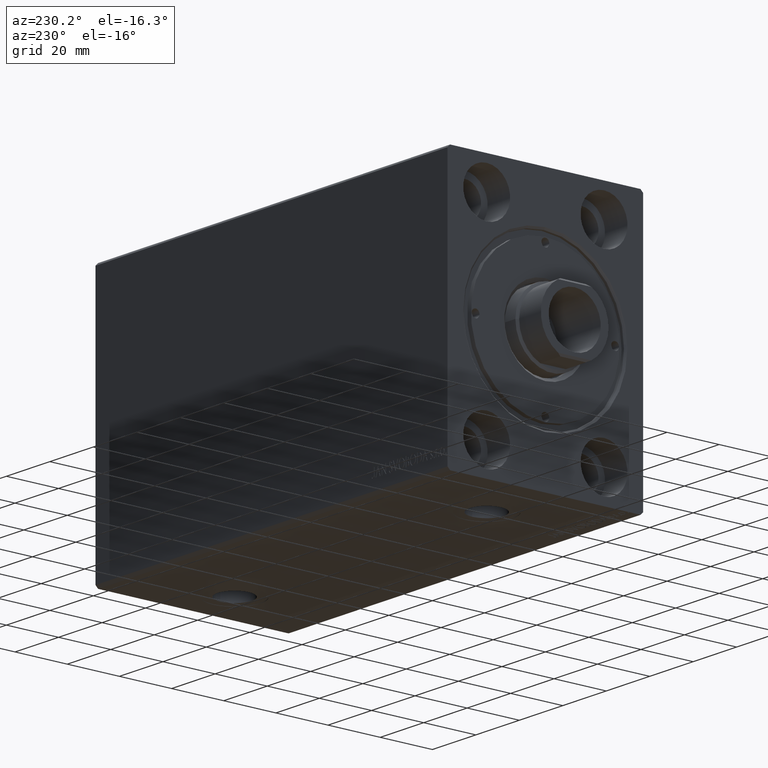
[diagram: clean part render]
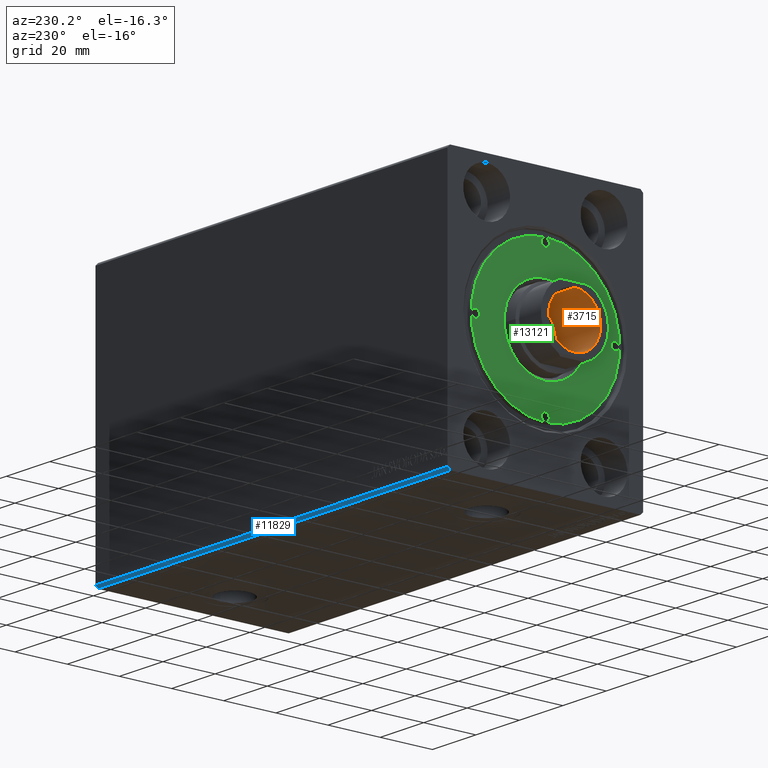
[diagram: same view with three faces highlighted in distinct colors, each labeled with its STEP entity id]
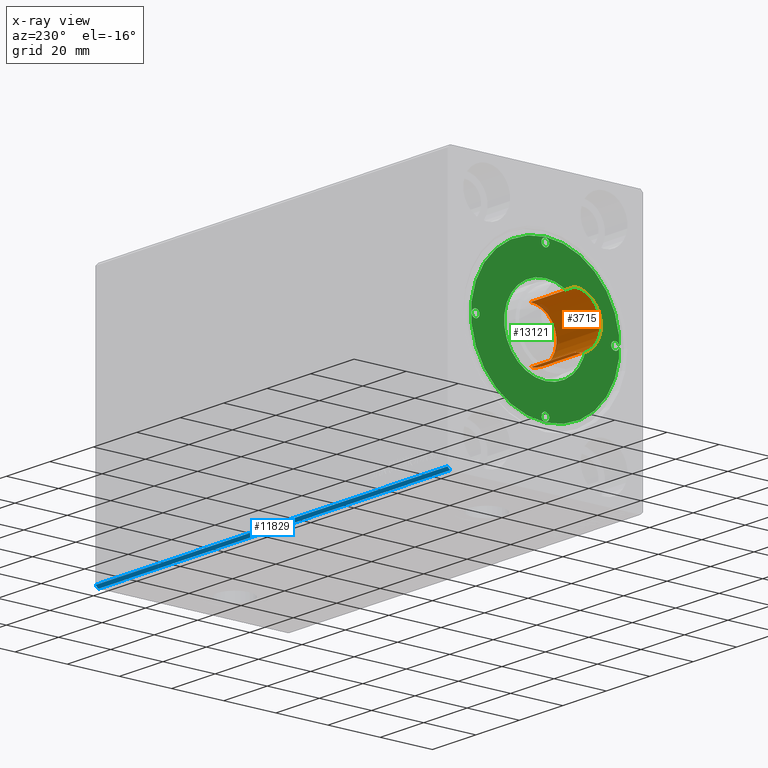
[diagram: x-ray of the same camera — body ghosted, the three highlighted faces saturated]
A machine part, auxiliary view with three faces highlighted in distinct colors.
The next image is the same camera in x-ray (body ghosted, the three faces saturated) — at least one of them is partly hidden behind the body in this view.
Their STEP definitions:

[orange] entity #3715 — the highlighted cylindrical surface (edge-blend (fillet) strip) has radius 10 mm, axis along (-1, 0, 0).
#479 = CARTESIAN_POINT ( 'NONE',  ( 0.000000000000000000, -2.189748893689212880E-14, 108.1000000000000085 ) ) ;
#993 = VECTOR ( 'NONE', #28057, 1000.000000000000000 ) ;
#1708 = DIRECTION ( 'NONE',  ( 1.000000000000000000, 0.000000000000000000, 0.000000000000000000 ) ) ;
#1867 = EDGE_CURVE ( 'NONE', #32778, #42388, #30099, .T. ) ;
#2448 = CARTESIAN_POINT ( 'NONE',  ( -10.00000000000000000, -2.067284213774477416E-14, 108.1000000000000085 ) ) ;
#3715 = ADVANCED_FACE ( 'NONE', ( #8234 ), #21940, .F. ) ;
#5112 = ORIENTED_EDGE ( 'NONE', *, *, #1867, .T. ) ;
#5269 = CARTESIAN_POINT ( 'NONE',  ( 10.00000000000000000, -2.189748893689212880E-14, 128.5000000000000000 ) ) ;
#6124 = DIRECTION ( 'NONE',  ( 1.000000000000000000, 0.000000000000000000, 0.000000000000000000 ) ) ;
#8234 = FACE_OUTER_BOUND ( 'NONE', #12798, .T. ) ;
#8975 = VECTOR ( 'NONE', #27157, 1000.000000000000000 ) ;
#11104 = AXIS2_PLACEMENT_3D ( 'NONE', #479, #14421, #31293 ) ;
#12511 = VERTEX_POINT ( 'NONE', #29100 ) ;
#12798 = EDGE_LOOP ( 'NONE', ( #18427, #5112, #31259, #13390 ) ) ;
#13390 = ORIENTED_EDGE ( 'NONE', *, *, #34116, .F. ) ;
#14337 = CARTESIAN_POINT ( 'NONE',  ( 10.00000000000000000, -2.189748893689212880E-14, 108.1000000000000085 ) ) ;
#14421 = DIRECTION ( 'NONE',  ( 0.000000000000000000, 0.000000000000000000, 1.000000000000000000 ) ) ;
#17850 = AXIS2_PLACEMENT_3D ( 'NONE', #44130, #40519, #6124 ) ;
#18427 = ORIENTED_EDGE ( 'NONE', *, *, #23572, .F. ) ;
#18558 = CARTESIAN_POINT ( 'NONE',  ( 0.000000000000000000, -2.189748893689212880E-14, 108.1000000000000085 ) ) ;
#21940 = CYLINDRICAL_SURFACE ( 'NONE', #25024, 10.00000000000000000 ) ;
#23572 = EDGE_CURVE ( 'NONE', #32778, #12511, #43409, .T. ) ;
#25024 = AXIS2_PLACEMENT_3D ( 'NONE', #18558, #32299, #1708 ) ;
#25871 = CARTESIAN_POINT ( 'NONE',  ( -10.00000000000000000, -2.067284213774477416E-14, 128.5000000000000000 ) ) ;
#27157 = DIRECTION ( 'NONE',  ( -0.000000000000000000, -0.000000000000000000, 1.000000000000000000 ) ) ;
#28057 = DIRECTION ( 'NONE',  ( -0.000000000000000000, -0.000000000000000000, 1.000000000000000000 ) ) ;
#29100 = CARTESIAN_POINT ( 'NONE',  ( 10.00000000000000000, -2.189748893689212880E-14, 108.1000000000000085 ) ) ;
#30099 = LINE ( 'NONE', #2448, #8975 ) ;
#31259 = ORIENTED_EDGE ( 'NONE', *, *, #37421, .T. ) ;
#31293 = DIRECTION ( 'NONE',  ( 1.000000000000000000, 0.000000000000000000, 0.000000000000000000 ) ) ;
#32299 = DIRECTION ( 'NONE',  ( -0.000000000000000000, -0.000000000000000000, 1.000000000000000000 ) ) ;
#32778 = VERTEX_POINT ( 'NONE', #37523 ) ;
#34116 = EDGE_CURVE ( 'NONE', #12511, #44042, #35256, .T. ) ;
#35256 = LINE ( 'NONE', #14337, #993 ) ;
#37421 = EDGE_CURVE ( 'NONE', #42388, #44042, #38663, .T. ) ;
#37523 = CARTESIAN_POINT ( 'NONE',  ( -10.00000000000000000, -2.067284213774477416E-14, 108.1000000000000085 ) ) ;
#38663 = CIRCLE ( 'NONE', #17850, 10.00000000000000000 ) ;
#40519 = DIRECTION ( 'NONE',  ( 0.000000000000000000, 0.000000000000000000, 1.000000000000000000 ) ) ;
#42388 = VERTEX_POINT ( 'NONE', #25871 ) ;
#43409 = CIRCLE ( 'NONE', #11104, 10.00000000000000000 ) ;
#44042 = VERTEX_POINT ( 'NONE', #5269 ) ;
#44130 = CARTESIAN_POINT ( 'NONE',  ( 0.000000000000000000, -2.189748893689212880E-14, 128.5000000000000000 ) ) ;

[blue] entity #11829 — the highlighted planar face has unit normal (0, -0.7071, 0.7071).
#1801 = CARTESIAN_POINT ( 'NONE',  ( 162.0000000000000000, 36.50000000000000711, -50.00000000000000000 ) ) ;
#2180 = VERTEX_POINT ( 'NONE', #7006 ) ;
#2192 = CARTESIAN_POINT ( 'NONE',  ( 162.0000000000000000, 36.50000000000000711, -50.00000000000000000 ) ) ;
#2501 = VERTEX_POINT ( 'NONE', #30129 ) ;
#5129 = VERTEX_POINT ( 'NONE', #6091 ) ;
#5370 = CARTESIAN_POINT ( 'NONE',  ( 162.0000000000000000, 37.50000000000000711, -49.00000000000000000 ) ) ;
#6091 = CARTESIAN_POINT ( 'NONE',  ( 162.0000000000000000, 37.50000000000000711, -49.00000000000000000 ) ) ;
#6938 = LINE ( 'NONE', #40893, #37955 ) ;
#7006 = CARTESIAN_POINT ( 'NONE',  ( 0.000000000000000000, 36.50000000000000711, -50.00000000000000000 ) ) ;
#8554 = PLANE ( 'NONE',  #15861 ) ;
#9770 = CARTESIAN_POINT ( 'NONE',  ( 162.0000000000000000, 36.50000000000000711, -50.00000000000000000 ) ) ;
#9870 = VECTOR ( 'NONE', #15233, 1000.000000000000114 ) ;
#11476 = EDGE_LOOP ( 'NONE', ( #37677, #13163, #38840, #14166 ) ) ;
#11829 = ADVANCED_FACE ( 'NONE', ( #39347 ), #8554, .F. ) ;
#13163 = ORIENTED_EDGE ( 'NONE', *, *, #24805, .F. ) ;
#14166 = ORIENTED_EDGE ( 'NONE', *, *, #24523, .T. ) ;
#14773 = VERTEX_POINT ( 'NONE', #9770 ) ;
#15233 = DIRECTION ( 'NONE',  ( 0.000000000000000000, 0.7071067811865474617, 0.7071067811865474617 ) ) ;
#15861 = AXIS2_PLACEMENT_3D ( 'NONE', #1801, #35758, #18875 ) ;
#18875 = DIRECTION ( 'NONE',  ( 0.000000000000000000, -0.7071067811865474617, -0.7071067811865474617 ) ) ;
#22197 = LINE ( 'NONE', #2192, #9870 ) ;
#22223 = LINE ( 'NONE', #5370, #34118 ) ;
#24523 = EDGE_CURVE ( 'NONE', #14773, #2180, #33506, .T. ) ;
#24805 = EDGE_CURVE ( 'NONE', #5129, #2501, #22223, .T. ) ;
#25461 = VECTOR ( 'NONE', #36669, 1000.000000000000000 ) ;
#29416 = DIRECTION ( 'NONE',  ( -1.000000000000000000, -0.000000000000000000, -0.000000000000000000 ) ) ;
#30129 = CARTESIAN_POINT ( 'NONE',  ( 0.000000000000000000, 37.50000000000000711, -49.00000000000000000 ) ) ;
#30554 = DIRECTION ( 'NONE',  ( 0.000000000000000000, 0.7071067811865474617, 0.7071067811865474617 ) ) ;
#33506 = LINE ( 'NONE', #37331, #25461 ) ;
#34118 = VECTOR ( 'NONE', #29416, 1000.000000000000000 ) ;
#34910 = EDGE_CURVE ( 'NONE', #14773, #5129, #22197, .T. ) ;
#35758 = DIRECTION ( 'NONE',  ( 0.000000000000000000, -0.7071067811865475727, 0.7071067811865475727 ) ) ;
#36669 = DIRECTION ( 'NONE',  ( -1.000000000000000000, -0.000000000000000000, -0.000000000000000000 ) ) ;
#37331 = CARTESIAN_POINT ( 'NONE',  ( 162.0000000000000000, 36.50000000000000711, -50.00000000000000000 ) ) ;
#37677 = ORIENTED_EDGE ( 'NONE', *, *, #40691, .T. ) ;
#37955 = VECTOR ( 'NONE', #30554, 1000.000000000000114 ) ;
#38840 = ORIENTED_EDGE ( 'NONE', *, *, #34910, .F. ) ;
#39347 = FACE_OUTER_BOUND ( 'NONE', #11476, .T. ) ;
#40691 = EDGE_CURVE ( 'NONE', #2180, #2501, #6938, .T. ) ;
#40893 = CARTESIAN_POINT ( 'NONE',  ( 0.000000000000000000, 36.50000000000000711, -50.00000000000000000 ) ) ;

[green] entity #13121 — the highlighted planar face has unit normal (-1, 0, 0).
#382 = AXIS2_PLACEMENT_3D ( 'NONE', #28810, #14864, #35787 ) ;
#1441 = CARTESIAN_POINT ( 'NONE',  ( 15.79999999999997407, 0.000000000000000000, 11.79999999999999893 ) ) ;
#1518 = DIRECTION ( 'NONE',  ( -0.000000000000000000, -0.000000000000000000, 1.000000000000000000 ) ) ;
#2059 = CARTESIAN_POINT ( 'NONE',  ( 28.50000000000000000, 3.490243377569956456E-15, 11.79999999999999893 ) ) ;
#2152 = AXIS2_PLACEMENT_3D ( 'NONE', #7824, #17047, #44512 ) ;
#2510 = AXIS2_PLACEMENT_3D ( 'NONE', #29355, #42188, #29129 ) ;
#3481 = EDGE_CURVE ( 'NONE', #25226, #17307, #10695, .T. ) ;
#4220 = AXIS2_PLACEMENT_3D ( 'NONE', #42187, #41746, #38151 ) ;
#4759 = CARTESIAN_POINT ( 'NONE',  ( 0.000000000000000000, -26.75000000000000000, 11.79999999999999893 ) ) ;
#5229 = VERTEX_POINT ( 'NONE', #10348 ) ;
#5682 = AXIS2_PLACEMENT_3D ( 'NONE', #24886, #1518, #31868 ) ;
#6002 = DIRECTION ( 'NONE',  ( 0.000000000000000000, 0.000000000000000000, 1.000000000000000000 ) ) ;
#6245 = CARTESIAN_POINT ( 'NONE',  ( 0.000000000000000000, 0.000000000000000000, 11.79999999999999893 ) ) ;
#7032 = AXIS2_PLACEMENT_3D ( 'NONE', #11699, #11923, #25385 ) ;
#7063 = EDGE_CURVE ( 'NONE', #36160, #5229, #25472, .T. ) ;
#7652 = FACE_BOUND ( 'NONE', #24799, .T. ) ;
#7696 = CARTESIAN_POINT ( 'NONE',  ( 0.000000000000000000, 26.75000000000000000, 11.79999999999999893 ) ) ;
#7824 = CARTESIAN_POINT ( 'NONE',  ( 0.000000000000000000, 0.000000000000000000, 11.79999999999999893 ) ) ;
#8339 = EDGE_LOOP ( 'NONE', ( #36701, #17964 ) ) ;
#8434 = EDGE_CURVE ( 'NONE', #26218, #43407, #11888, .T. ) ;
#8736 = ORIENTED_EDGE ( 'NONE', *, *, #8434, .F. ) ;
#8932 = DIRECTION ( 'NONE',  ( 1.000000000000000000, 0.000000000000000000, 0.000000000000000000 ) ) ;
#9644 = CARTESIAN_POINT ( 'NONE',  ( 0.000000000000000000, 0.000000000000000000, 11.79999999999999893 ) ) ;
#10150 = FACE_OUTER_BOUND ( 'NONE', #17496, .T. ) ;
#10348 = CARTESIAN_POINT ( 'NONE',  ( 25.25000000000000000, 1.836970198721027222E-16, 11.79999999999999893 ) ) ;
#10695 = CIRCLE ( 'NONE', #43026, 15.79999999999997762 ) ;
#10851 = DIRECTION ( 'NONE',  ( -0.000000000000000000, -0.000000000000000000, 1.000000000000000000 ) ) ;
#11035 = FACE_BOUND ( 'NONE', #8339, .T. ) ;
#11571 = DIRECTION ( 'NONE',  ( -0.000000000000000000, -0.000000000000000000, 1.000000000000000000 ) ) ;
#11699 = CARTESIAN_POINT ( 'NONE',  ( 0.000000000000000000, 0.000000000000000000, 11.79999999999999893 ) ) ;
#11888 = CIRCLE ( 'NONE', #382, 1.499999999999997780 ) ;
#11923 = DIRECTION ( 'NONE',  ( 0.000000000000000000, 0.000000000000000000, 1.000000000000000000 ) ) ;
#12574 = DIRECTION ( 'NONE',  ( 0.000000000000000000, 0.000000000000000000, 1.000000000000000000 ) ) ;
#12754 = ORIENTED_EDGE ( 'NONE', *, *, #25205, .F. ) ;
#12990 = DIRECTION ( 'NONE',  ( 1.000000000000000000, 0.000000000000000000, 0.000000000000000000 ) ) ;
#13112 = CARTESIAN_POINT ( 'NONE',  ( -15.79999999999997407, 1.934941942652814868E-15, 11.79999999999999893 ) ) ;
#13121 = ADVANCED_FACE ( 'NONE', ( #28114, #41836, #11035, #7652, #21345, #10150 ), #23840, .T. ) ;
#13201 = ORIENTED_EDGE ( 'NONE', *, *, #3481, .T. ) ;
#13279 = AXIS2_PLACEMENT_3D ( 'NONE', #30771, #34591, #20184 ) ;
#13891 = VERTEX_POINT ( 'NONE', #31500 ) ;
#13952 = AXIS2_PLACEMENT_3D ( 'NONE', #26683, #6002, #8932 ) ;
#14691 = AXIS2_PLACEMENT_3D ( 'NONE', #9644, #12574, #36192 ) ;
#14864 = DIRECTION ( 'NONE',  ( -0.000000000000000000, -0.000000000000000000, 1.000000000000000000 ) ) ;
#16707 = ORIENTED_EDGE ( 'NONE', *, *, #30549, .T. ) ;
#16856 = ORIENTED_EDGE ( 'NONE', *, *, #28884, .F. ) ;
#16920 = CARTESIAN_POINT ( 'NONE',  ( -1.499999999999996891, -26.75000000000000000, 11.79999999999999893 ) ) ;
#17047 = DIRECTION ( 'NONE',  ( -0.000000000000000000, -0.000000000000000000, -1.000000000000000000 ) ) ;
#17120 = CARTESIAN_POINT ( 'NONE',  ( -28.24999999999999645, 1.836970198721027222E-16, 11.79999999999999893 ) ) ;
#17271 = VERTEX_POINT ( 'NONE', #16920 ) ;
#17307 = VERTEX_POINT ( 'NONE', #13112 ) ;
#17496 = EDGE_LOOP ( 'NONE', ( #16707, #34546 ) ) ;
#17964 = ORIENTED_EDGE ( 'NONE', *, *, #42030, .F. ) ;
#18504 = DIRECTION ( 'NONE',  ( 1.000000000000000000, 0.000000000000000000, 0.000000000000000000 ) ) ;
#18668 = CIRCLE ( 'NONE', #40854, 1.499999999999996891 ) ;
#18825 = ORIENTED_EDGE ( 'NONE', *, *, #32803, .F. ) ;
#19717 = CIRCLE ( 'NONE', #14691, 28.50000000000000000 ) ;
#19793 = CARTESIAN_POINT ( 'NONE',  ( 1.499999999999996891, 26.75000000000000000, 11.79999999999999893 ) ) ;
#20099 = AXIS2_PLACEMENT_3D ( 'NONE', #4759, #10851, #21155 ) ;
#20184 = DIRECTION ( 'NONE',  ( 1.000000000000000000, 0.000000000000000000, 0.000000000000000000 ) ) ;
#21152 = AXIS2_PLACEMENT_3D ( 'NONE', #32021, #11571, #18504 ) ;
#21155 = DIRECTION ( 'NONE',  ( 1.000000000000000000, 0.000000000000000000, 0.000000000000000000 ) ) ;
#21345 = FACE_BOUND ( 'NONE', #37222, .T. ) ;
#21393 = DIRECTION ( 'NONE',  ( 1.000000000000000000, 0.000000000000000000, 0.000000000000000000 ) ) ;
#22574 = EDGE_CURVE ( 'NONE', #17307, #25226, #30142, .T. ) ;
#23312 = CIRCLE ( 'NONE', #21152, 1.499999999999996891 ) ;
#23589 = CIRCLE ( 'NONE', #4220, 1.499999999999997780 ) ;
#23840 = PLANE ( 'NONE',  #7032 ) ;
#24799 = EDGE_LOOP ( 'NONE', ( #25657, #12754 ) ) ;
#24886 = CARTESIAN_POINT ( 'NONE',  ( 0.000000000000000000, 26.75000000000000000, 11.79999999999999893 ) ) ;
#24993 = DIRECTION ( 'NONE',  ( -0.000000000000000000, -0.000000000000000000, 1.000000000000000000 ) ) ;
#25205 = EDGE_CURVE ( 'NONE', #17271, #38357, #23312, .T. ) ;
#25226 = VERTEX_POINT ( 'NONE', #1441 ) ;
#25385 = DIRECTION ( 'NONE',  ( 1.000000000000000000, 0.000000000000000000, -0.000000000000000000 ) ) ;
#25472 = CIRCLE ( 'NONE', #2510, 1.499999999999997780 ) ;
#25657 = ORIENTED_EDGE ( 'NONE', *, *, #28011, .F. ) ;
#25714 = VERTEX_POINT ( 'NONE', #30007 ) ;
#26218 = VERTEX_POINT ( 'NONE', #17120 ) ;
#26683 = CARTESIAN_POINT ( 'NONE',  ( 0.000000000000000000, 0.000000000000000000, 11.79999999999999893 ) ) ;
#27024 = CARTESIAN_POINT ( 'NONE',  ( 1.499999999999996891, -26.75000000000000000, 11.79999999999999893 ) ) ;
#28011 = EDGE_CURVE ( 'NONE', #38357, #17271, #33769, .T. ) ;
#28114 = FACE_BOUND ( 'NONE', #36508, .T. ) ;
#28810 = CARTESIAN_POINT ( 'NONE',  ( -26.75000000000000000, 0.000000000000000000, 11.79999999999999893 ) ) ;
#28884 = EDGE_CURVE ( 'NONE', #39547, #13891, #18668, .T. ) ;
#29129 = DIRECTION ( 'NONE',  ( 1.000000000000000000, 0.000000000000000000, 0.000000000000000000 ) ) ;
#29355 = CARTESIAN_POINT ( 'NONE',  ( 26.75000000000000000, 0.000000000000000000, 11.79999999999999893 ) ) ;
#29567 = EDGE_CURVE ( 'NONE', #13891, #39547, #43120, .T. ) ;
#30007 = CARTESIAN_POINT ( 'NONE',  ( -28.50000000000000000, 0.000000000000000000, 11.79999999999999893 ) ) ;
#30142 = CIRCLE ( 'NONE', #2152, 15.79999999999997762 ) ;
#30549 = EDGE_CURVE ( 'NONE', #25714, #31624, #37649, .T. ) ;
#30771 = CARTESIAN_POINT ( 'NONE',  ( -26.75000000000000000, 0.000000000000000000, 11.79999999999999893 ) ) ;
#31500 = CARTESIAN_POINT ( 'NONE',  ( -1.499999999999996891, 26.75000000000000000, 11.79999999999999893 ) ) ;
#31624 = VERTEX_POINT ( 'NONE', #2059 ) ;
#31868 = DIRECTION ( 'NONE',  ( 1.000000000000000000, 0.000000000000000000, 0.000000000000000000 ) ) ;
#32021 = CARTESIAN_POINT ( 'NONE',  ( 0.000000000000000000, -26.75000000000000000, 11.79999999999999893 ) ) ;
#32680 = CIRCLE ( 'NONE', #13279, 1.499999999999997780 ) ;
#32719 = EDGE_CURVE ( 'NONE', #31624, #25714, #19717, .T. ) ;
#32803 = EDGE_CURVE ( 'NONE', #43407, #26218, #32680, .T. ) ;
#33676 = DIRECTION ( 'NONE',  ( -0.000000000000000000, -0.000000000000000000, -1.000000000000000000 ) ) ;
#33769 = CIRCLE ( 'NONE', #20099, 1.499999999999996891 ) ;
#34546 = ORIENTED_EDGE ( 'NONE', *, *, #32719, .T. ) ;
#34591 = DIRECTION ( 'NONE',  ( -0.000000000000000000, -0.000000000000000000, 1.000000000000000000 ) ) ;
#35644 = ORIENTED_EDGE ( 'NONE', *, *, #29567, .F. ) ;
#35787 = DIRECTION ( 'NONE',  ( 1.000000000000000000, 0.000000000000000000, 0.000000000000000000 ) ) ;
#36160 = VERTEX_POINT ( 'NONE', #40139 ) ;
#36192 = DIRECTION ( 'NONE',  ( 1.000000000000000000, 0.000000000000000000, 0.000000000000000000 ) ) ;
#36508 = EDGE_LOOP ( 'NONE', ( #18825, #8736 ) ) ;
#36701 = ORIENTED_EDGE ( 'NONE', *, *, #7063, .F. ) ;
#36942 = CARTESIAN_POINT ( 'NONE',  ( -25.25000000000000000, 0.000000000000000000, 11.79999999999999893 ) ) ;
#37222 = EDGE_LOOP ( 'NONE', ( #13201, #44522 ) ) ;
#37649 = CIRCLE ( 'NONE', #13952, 28.50000000000000000 ) ;
#37899 = EDGE_LOOP ( 'NONE', ( #16856, #35644 ) ) ;
#38151 = DIRECTION ( 'NONE',  ( 1.000000000000000000, 0.000000000000000000, 0.000000000000000000 ) ) ;
#38357 = VERTEX_POINT ( 'NONE', #27024 ) ;
#39547 = VERTEX_POINT ( 'NONE', #19793 ) ;
#40139 = CARTESIAN_POINT ( 'NONE',  ( 28.24999999999999645, 0.000000000000000000, 11.79999999999999893 ) ) ;
#40854 = AXIS2_PLACEMENT_3D ( 'NONE', #7696, #24993, #21393 ) ;
#41746 = DIRECTION ( 'NONE',  ( -0.000000000000000000, -0.000000000000000000, 1.000000000000000000 ) ) ;
#41836 = FACE_BOUND ( 'NONE', #37899, .T. ) ;
#42030 = EDGE_CURVE ( 'NONE', #5229, #36160, #23589, .T. ) ;
#42187 = CARTESIAN_POINT ( 'NONE',  ( 26.75000000000000000, 0.000000000000000000, 11.79999999999999893 ) ) ;
#42188 = DIRECTION ( 'NONE',  ( -0.000000000000000000, -0.000000000000000000, 1.000000000000000000 ) ) ;
#43026 = AXIS2_PLACEMENT_3D ( 'NONE', #6245, #33676, #12990 ) ;
#43120 = CIRCLE ( 'NONE', #5682, 1.499999999999996891 ) ;
#43407 = VERTEX_POINT ( 'NONE', #36942 ) ;
#44512 = DIRECTION ( 'NONE',  ( 1.000000000000000000, 0.000000000000000000, 0.000000000000000000 ) ) ;
#44522 = ORIENTED_EDGE ( 'NONE', *, *, #22574, .T. ) ;